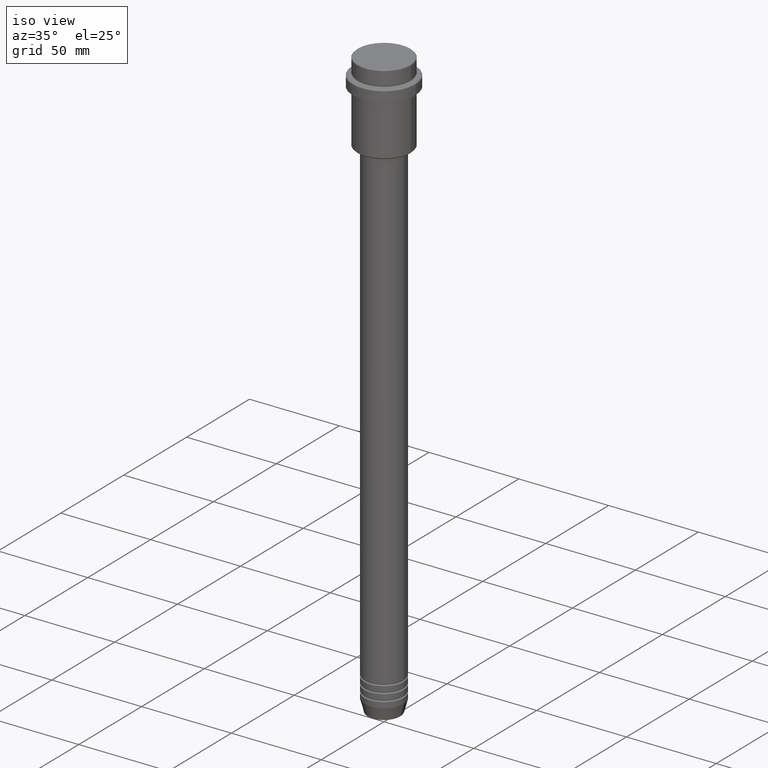
[diagram: clean part render]
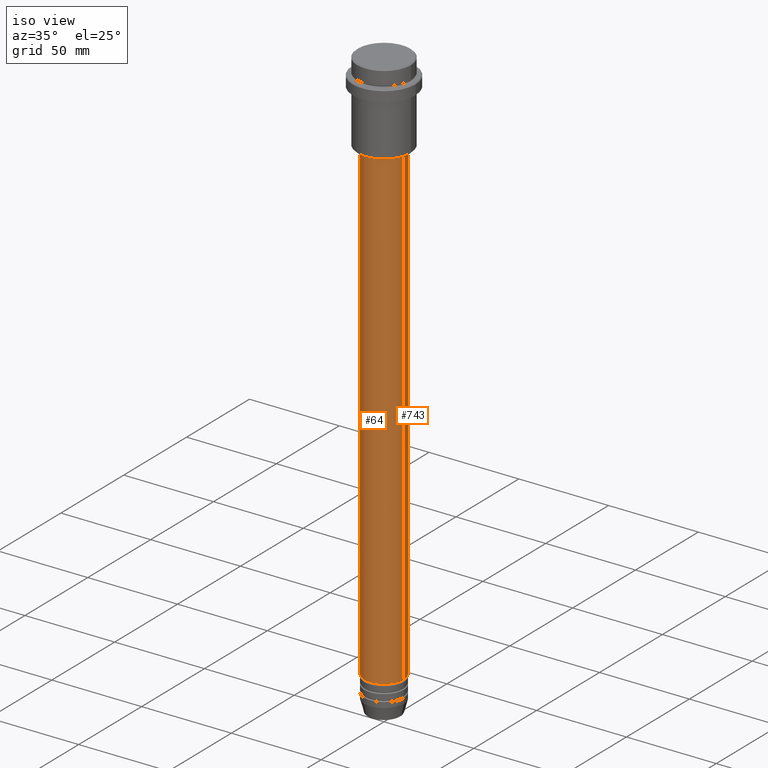
[diagram: same view with one multi-face feature highlighted, each face labeled with its STEP entity id]
A machine part, iso view. The highlighted faces form ONE feature: a constant-radius fillet chain: 2 tangent blend faces with common blend radius 11 mm. The faces share edges in the B-rep.
Their STEP definitions:
[1] entity #64 (Cylinder):
#1 = LINE ( 'NONE', #454, #253 ) ;
#24 = CARTESIAN_POINT ( 'NONE',  ( -11.00000000000000000, 1.347111479062088405E-15, 0.000000000000000000 ) ) ;
#26 = DIRECTION ( 'NONE',  ( -0.000000000000000000, -0.000000000000000000, 1.000000000000000000 ) ) ;
#64 = ADVANCED_FACE ( 'NONE', ( #159 ), #385, .T. ) ;
#78 = CIRCLE ( 'NONE', #1055, 11.00000000000000000 ) ;
#92 = DIRECTION ( 'NONE',  ( -0.000000000000000000, -0.000000000000000000, 1.000000000000000000 ) ) ;
#126 = VECTOR ( 'NONE', #1223, 1000.000000000000000 ) ;
#159 = FACE_OUTER_BOUND ( 'NONE', #638, .T. ) ;
#161 = VERTEX_POINT ( 'NONE', #747 ) ;
#164 = VERTEX_POINT ( 'NONE', #181 ) ;
#171 = CARTESIAN_POINT ( 'NONE',  ( 0.000000000000000000, 0.000000000000000000, -46.00000000000001421 ) ) ;
#181 = CARTESIAN_POINT ( 'NONE',  ( 10.99999999999999822, 0.000000000000000000, -46.00000000000001421 ) ) ;
#246 = CARTESIAN_POINT ( 'NONE',  ( 0.000000000000000000, 0.000000000000000000, -310.9999999999998863 ) ) ;
#253 = VECTOR ( 'NONE', #92, 1000.000000000000000 ) ;
#281 = DIRECTION ( 'NONE',  ( 1.000000000000000000, 0.000000000000000000, 0.000000000000000000 ) ) ;
#369 = DIRECTION ( 'NONE',  ( 1.000000000000000000, 0.000000000000000000, 0.000000000000000000 ) ) ;
#385 = CYLINDRICAL_SURFACE ( 'NONE', #901, 11.00000000000000000 ) ;
#395 = DIRECTION ( 'NONE',  ( -0.000000000000000000, -0.000000000000000000, 1.000000000000000000 ) ) ;
#454 = CARTESIAN_POINT ( 'NONE',  ( 11.00000000000000000, 0.000000000000000000, 0.000000000000000000 ) ) ;
#525 = EDGE_CURVE ( 'NONE', #692, #164, #1027, .T. ) ;
#575 = AXIS2_PLACEMENT_3D ( 'NONE', #171, #1068, #1054 ) ;
#638 = EDGE_LOOP ( 'NONE', ( #818, #1184, #805, #1243 ) ) ;
#692 = VERTEX_POINT ( 'NONE', #778 ) ;
#747 = CARTESIAN_POINT ( 'NONE',  ( 11.00000000000000000, 0.000000000000000000, -310.9999999999998863 ) ) ;
#752 = EDGE_CURVE ( 'NONE', #161, #164, #1, .T. ) ;
#778 = CARTESIAN_POINT ( 'NONE',  ( -10.99999999999999822, 1.347111479062088207E-15, -46.00000000000001421 ) ) ;
#801 = CARTESIAN_POINT ( 'NONE',  ( -11.00000000000000000, 1.347111479062088405E-15, -310.9999999999998863 ) ) ;
#805 = ORIENTED_EDGE ( 'NONE', *, *, #752, .T. ) ;
#818 = ORIENTED_EDGE ( 'NONE', *, *, #1343, .F. ) ;
#826 = EDGE_CURVE ( 'NONE', #1349, #161, #78, .T. ) ;
#839 = CARTESIAN_POINT ( 'NONE',  ( 0.000000000000000000, 0.000000000000000000, 0.000000000000000000 ) ) ;
#901 = AXIS2_PLACEMENT_3D ( 'NONE', #839, #395, #281 ) ;
#1027 = CIRCLE ( 'NONE', #575, 10.99999999999999822 ) ;
#1036 = LINE ( 'NONE', #24, #126 ) ;
#1054 = DIRECTION ( 'NONE',  ( 1.000000000000000000, 0.000000000000000000, 0.000000000000000000 ) ) ;
#1055 = AXIS2_PLACEMENT_3D ( 'NONE', #246, #26, #369 ) ;
#1068 = DIRECTION ( 'NONE',  ( -0.000000000000000000, -0.000000000000000000, 1.000000000000000000 ) ) ;
#1184 = ORIENTED_EDGE ( 'NONE', *, *, #826, .T. ) ;
#1223 = DIRECTION ( 'NONE',  ( -0.000000000000000000, -0.000000000000000000, 1.000000000000000000 ) ) ;
#1243 = ORIENTED_EDGE ( 'NONE', *, *, #525, .F. ) ;
#1343 = EDGE_CURVE ( 'NONE', #1349, #692, #1036, .T. ) ;
#1349 = VERTEX_POINT ( 'NONE', #801 ) ;
[2] entity #743 (Cylinder):
#1 = LINE ( 'NONE', #454, #253 ) ;
#6 = FACE_OUTER_BOUND ( 'NONE', #1149, .T. ) ;
#24 = CARTESIAN_POINT ( 'NONE',  ( -11.00000000000000000, 1.347111479062088405E-15, 0.000000000000000000 ) ) ;
#63 = DIRECTION ( 'NONE',  ( 1.000000000000000000, 0.000000000000000000, 0.000000000000000000 ) ) ;
#92 = DIRECTION ( 'NONE',  ( -0.000000000000000000, -0.000000000000000000, 1.000000000000000000 ) ) ;
#109 = DIRECTION ( 'NONE',  ( 1.000000000000000000, 0.000000000000000000, 0.000000000000000000 ) ) ;
#115 = CARTESIAN_POINT ( 'NONE',  ( 0.000000000000000000, 0.000000000000000000, -46.00000000000001421 ) ) ;
#126 = VECTOR ( 'NONE', #1223, 1000.000000000000000 ) ;
#161 = VERTEX_POINT ( 'NONE', #747 ) ;
#162 = DIRECTION ( 'NONE',  ( -0.000000000000000000, -0.000000000000000000, 1.000000000000000000 ) ) ;
#164 = VERTEX_POINT ( 'NONE', #181 ) ;
#181 = CARTESIAN_POINT ( 'NONE',  ( 10.99999999999999822, 0.000000000000000000, -46.00000000000001421 ) ) ;
#211 = ORIENTED_EDGE ( 'NONE', *, *, #997, .T. ) ;
#253 = VECTOR ( 'NONE', #92, 1000.000000000000000 ) ;
#308 = ORIENTED_EDGE ( 'NONE', *, *, #1343, .T. ) ;
#454 = CARTESIAN_POINT ( 'NONE',  ( 11.00000000000000000, 0.000000000000000000, 0.000000000000000000 ) ) ;
#459 = CARTESIAN_POINT ( 'NONE',  ( 0.000000000000000000, 0.000000000000000000, 0.000000000000000000 ) ) ;
#549 = ORIENTED_EDGE ( 'NONE', *, *, #752, .F. ) ;
#673 = EDGE_CURVE ( 'NONE', #164, #692, #1189, .T. ) ;
#692 = VERTEX_POINT ( 'NONE', #778 ) ;
#735 = CIRCLE ( 'NONE', #930, 11.00000000000000000 ) ;
#743 = ADVANCED_FACE ( 'NONE', ( #6 ), #1197, .T. ) ;
#747 = CARTESIAN_POINT ( 'NONE',  ( 11.00000000000000000, 0.000000000000000000, -310.9999999999998863 ) ) ;
#752 = EDGE_CURVE ( 'NONE', #161, #164, #1, .T. ) ;
#766 = DIRECTION ( 'NONE',  ( 1.000000000000000000, 0.000000000000000000, 0.000000000000000000 ) ) ;
#778 = CARTESIAN_POINT ( 'NONE',  ( -10.99999999999999822, 1.347111479062088207E-15, -46.00000000000001421 ) ) ;
#789 = DIRECTION ( 'NONE',  ( -0.000000000000000000, -0.000000000000000000, 1.000000000000000000 ) ) ;
#801 = CARTESIAN_POINT ( 'NONE',  ( -11.00000000000000000, 1.347111479062088405E-15, -310.9999999999998863 ) ) ;
#865 = ORIENTED_EDGE ( 'NONE', *, *, #673, .F. ) ;
#928 = AXIS2_PLACEMENT_3D ( 'NONE', #115, #789, #766 ) ;
#930 = AXIS2_PLACEMENT_3D ( 'NONE', #1261, #162, #63 ) ;
#972 = AXIS2_PLACEMENT_3D ( 'NONE', #459, #982, #109 ) ;
#982 = DIRECTION ( 'NONE',  ( -0.000000000000000000, -0.000000000000000000, 1.000000000000000000 ) ) ;
#997 = EDGE_CURVE ( 'NONE', #161, #1349, #735, .T. ) ;
#1036 = LINE ( 'NONE', #24, #126 ) ;
#1149 = EDGE_LOOP ( 'NONE', ( #211, #308, #865, #549 ) ) ;
#1189 = CIRCLE ( 'NONE', #928, 10.99999999999999822 ) ;
#1197 = CYLINDRICAL_SURFACE ( 'NONE', #972, 11.00000000000000000 ) ;
#1223 = DIRECTION ( 'NONE',  ( -0.000000000000000000, -0.000000000000000000, 1.000000000000000000 ) ) ;
#1261 = CARTESIAN_POINT ( 'NONE',  ( 0.000000000000000000, 0.000000000000000000, -310.9999999999998863 ) ) ;
#1343 = EDGE_CURVE ( 'NONE', #1349, #692, #1036, .T. ) ;
#1349 = VERTEX_POINT ( 'NONE', #801 ) ;